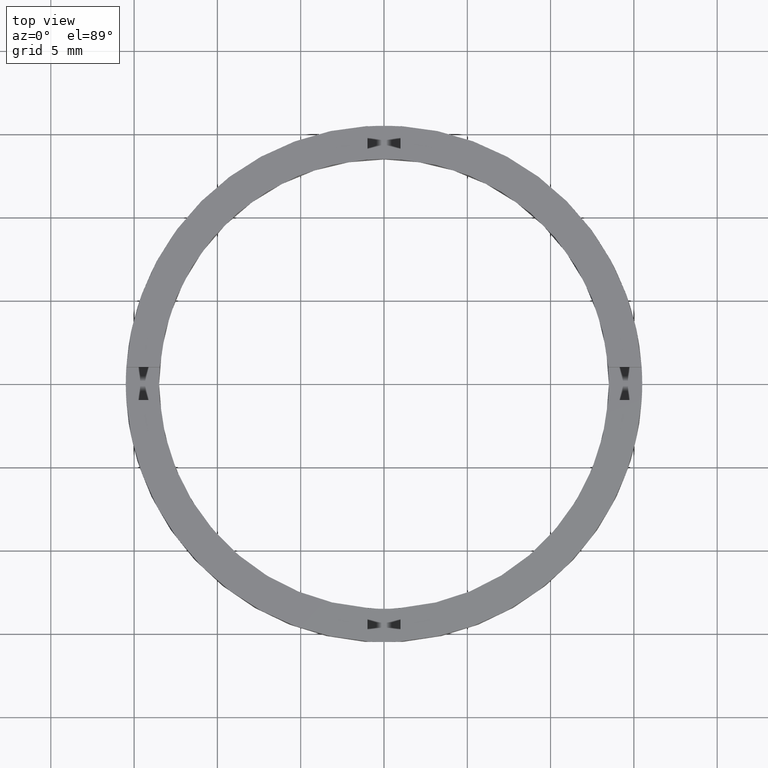
[diagram: clean part render]
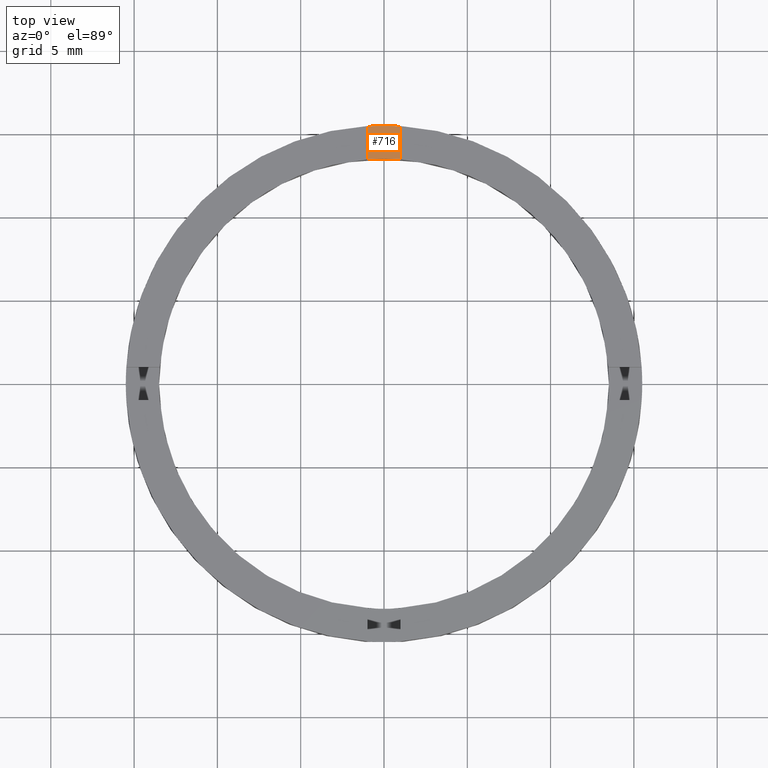
[diagram: same view with one face highlighted and labeled with its STEP entity id]
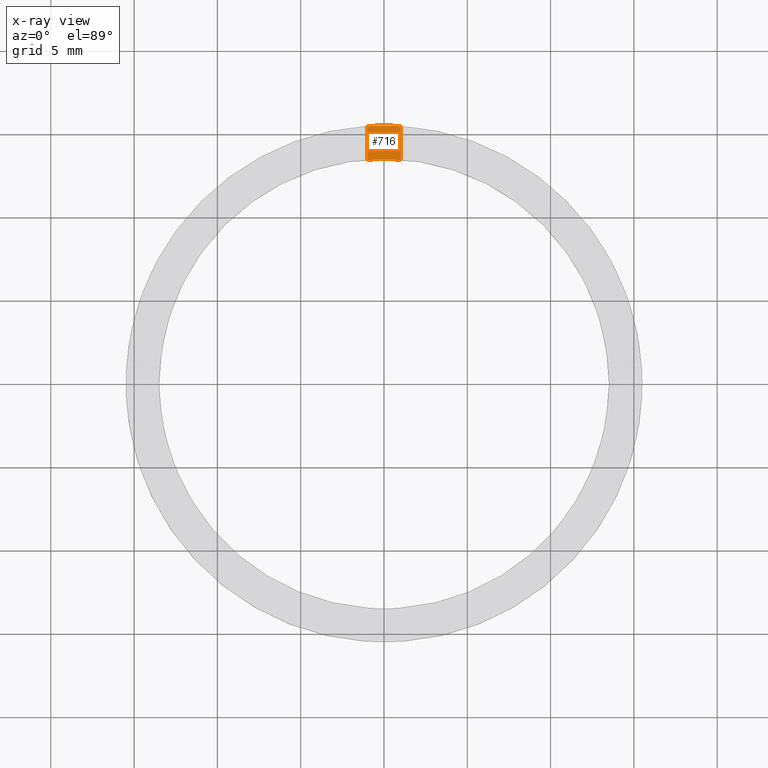
[diagram: x-ray of the same camera — body ghosted, the highlighted face saturated]
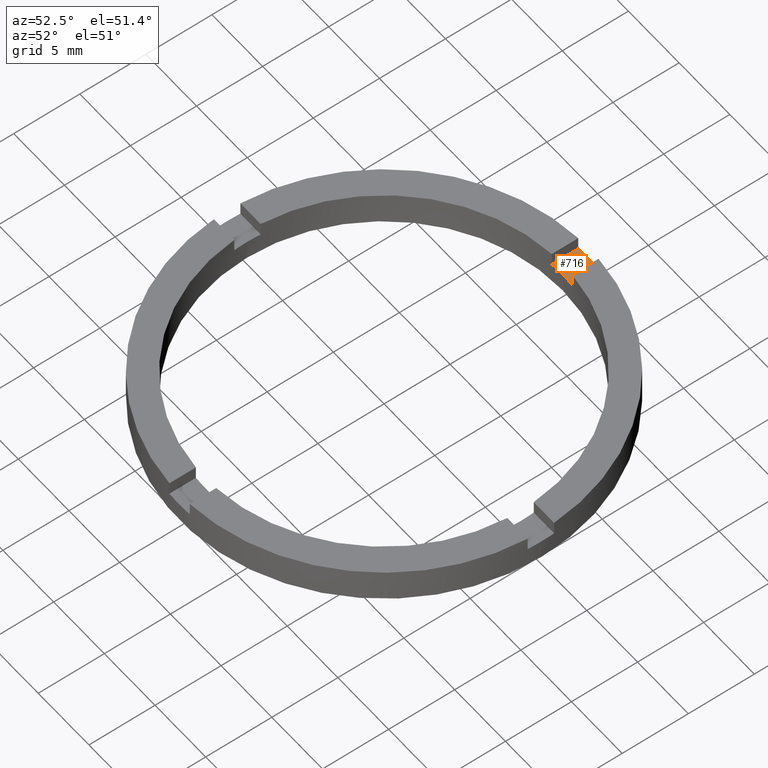
[diagram: same view with one face highlighted and labeled with its STEP entity id]
A machine part, top view. The second image highlights one B-rep face of the part: STEP entity #716.
The next image is the same camera in x-ray: the body ghosted, the highlighted face saturated — about 0% of this face is hidden behind the body in this view.
A second angle (auxiliary view) of the same face is appended — the face is thin or edge-on in the first view.
In plain terms, the highlighted planar face has unit normal (0, -0, 1).
Its self-contained STEP definition (entity closure, byte-faithful):
#21 = ORIENTED_EDGE ( 'NONE', *, *, #74, .T. ) ;
#29 = DIRECTION ( 'NONE',  ( 1.000000000000000000, 0.000000000000000000, 0.000000000000000000 ) ) ;
#34 = CARTESIAN_POINT ( 'NONE',  ( -1.000000000000024869, 5.500000000000000000, 1.500000000000000000 ) ) ;
#36 = CARTESIAN_POINT ( 'NONE',  ( 0.000000000000000000, 0.000000000000000000, 1.500000000000000000 ) ) ;
#51 = ORIENTED_EDGE ( 'NONE', *, *, #155, .T. ) ;
#74 = EDGE_CURVE ( 'NONE', #738, #311, #630, .T. ) ;
#85 = DIRECTION ( 'NONE',  ( 0.000000000000000000, -0.000000000000000000, 1.000000000000000000 ) ) ;
#113 = AXIS2_PLACEMENT_3D ( 'NONE', #136, #755, #147 ) ;
#121 = EDGE_CURVE ( 'NONE', #218, #186, #616, .T. ) ;
#136 = CARTESIAN_POINT ( 'NONE',  ( 0.000000000000000000, 0.000000000000000000, 1.500000000000000000 ) ) ;
#147 = DIRECTION ( 'NONE',  ( 1.000000000000000000, 0.000000000000000000, 0.000000000000000000 ) ) ;
#152 = DIRECTION ( 'NONE',  ( 1.000000000000000000, 0.000000000000000000, -0.000000000000000000 ) ) ;
#155 = EDGE_CURVE ( 'NONE', #218, #738, #389, .T. ) ;
#159 = VECTOR ( 'NONE', #236, 1000.000000000000000 ) ;
#186 = VERTEX_POINT ( 'NONE', #206 ) ;
#206 = CARTESIAN_POINT ( 'NONE',  ( -1.000000000000024869, 13.46291201783625802, 1.500000000000000000 ) ) ;
#212 = EDGE_LOOP ( 'NONE', ( #21, #560, #328, #51 ) ) ;
#218 = VERTEX_POINT ( 'NONE', #680 ) ;
#236 = DIRECTION ( 'NONE',  ( -0.000000000000000000, -1.000000000000000000, -0.000000000000000000 ) ) ;
#274 = DIRECTION ( 'NONE',  ( 0.000000000000000000, 1.000000000000000000, 0.000000000000000000 ) ) ;
#291 = CARTESIAN_POINT ( 'NONE',  ( -1.000000000000024869, 15.46770829825801741, 1.500000000000000000 ) ) ;
#311 = VERTEX_POINT ( 'NONE', #291 ) ;
#328 = ORIENTED_EDGE ( 'NONE', *, *, #121, .F. ) ;
#344 = CARTESIAN_POINT ( 'NONE',  ( 0.9999999999999751310, 15.46770829825802096, 1.500000000000000000 ) ) ;
#378 = VECTOR ( 'NONE', #274, 1000.000000000000000 ) ;
#389 = LINE ( 'NONE', #611, #378 ) ;
#425 = LINE ( 'NONE', #34, #159 ) ;
#502 = AXIS2_PLACEMENT_3D ( 'NONE', #36, #85, #152 ) ;
#560 = ORIENTED_EDGE ( 'NONE', *, *, #592, .T. ) ;
#592 = EDGE_CURVE ( 'NONE', #311, #186, #425, .T. ) ;
#611 = CARTESIAN_POINT ( 'NONE',  ( 0.9999999999999751310, 5.500000000000000000, 1.500000000000000000 ) ) ;
#616 = CIRCLE ( 'NONE', #113, 13.50000000000000000 ) ;
#630 = CIRCLE ( 'NONE', #733, 15.50000000000000000 ) ;
#647 = CARTESIAN_POINT ( 'NONE',  ( 0.000000000000000000, 0.000000000000000000, 1.500000000000000000 ) ) ;
#674 = FACE_OUTER_BOUND ( 'NONE', #212, .T. ) ;
#680 = CARTESIAN_POINT ( 'NONE',  ( 0.9999999999999751310, 13.46291201783626335, 1.500000000000000000 ) ) ;
#716 = ADVANCED_FACE ( 'NONE', ( #674 ), #762, .T. ) ;
#733 = AXIS2_PLACEMENT_3D ( 'NONE', #647, #773, #29 ) ;
#738 = VERTEX_POINT ( 'NONE', #344 ) ;
#755 = DIRECTION ( 'NONE',  ( 0.000000000000000000, -0.000000000000000000, 1.000000000000000000 ) ) ;
#762 = PLANE ( 'NONE',  #502 ) ;
#773 = DIRECTION ( 'NONE',  ( 0.000000000000000000, -0.000000000000000000, 1.000000000000000000 ) ) ;